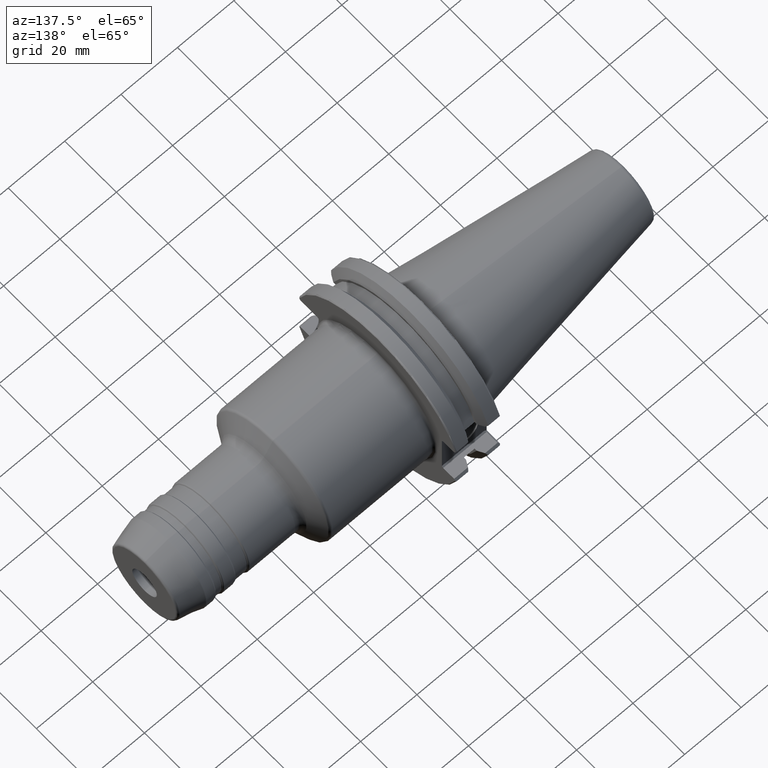
[diagram: clean part render]
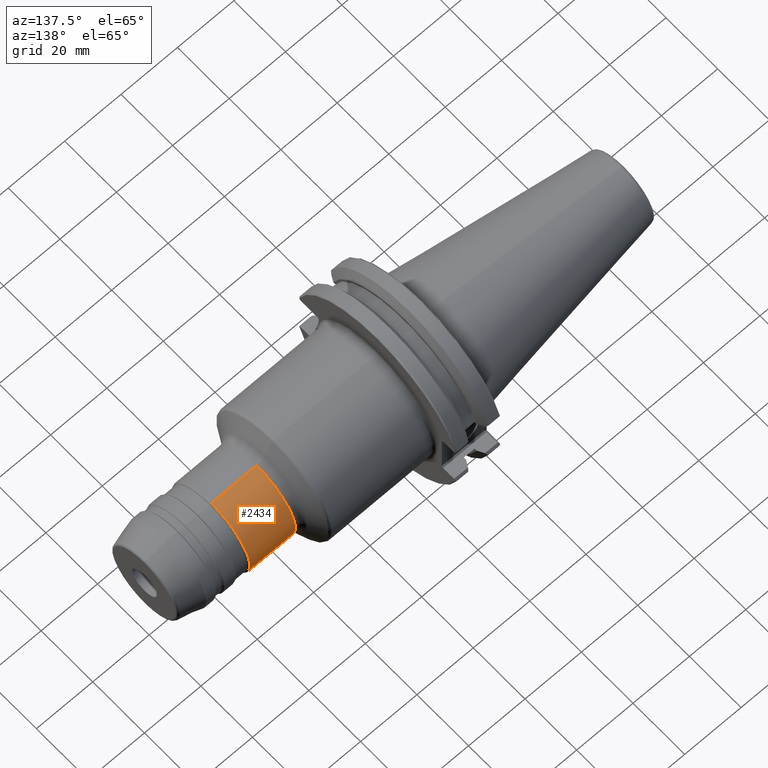
[diagram: same view with one face highlighted and labeled with its STEP entity id]
A machine part, auxiliary view. The second image highlights one B-rep face of the part: STEP entity #2434.
In plain terms, the highlighted cylindrical surface (partial cylindrical patch) has radius 15 mm, axis along (1, 0, 0).
Its self-contained STEP definition (entity closure, byte-faithful):
#293=CARTESIAN_POINT('',(6.185705080757E1,0.E0,0.E0));
#294=DIRECTION('',(1.E0,0.E0,0.E0));
#295=DIRECTION('',(0.E0,0.E0,-1.E0));
#296=AXIS2_PLACEMENT_3D('',#293,#294,#295);
#313=DIRECTION('',(-1.E0,0.E0,0.E0));
#314=VECTOR('',#313,1.613286389632E1);
#315=CARTESIAN_POINT('',(7.798991470389E1,0.E0,-1.5E1));
#316=LINE('',#315,#314);
#317=DIRECTION('',(-1.E0,0.E0,0.E0));
#318=VECTOR('',#317,1.613286389632E1);
#319=CARTESIAN_POINT('',(7.798991470389E1,0.E0,1.5E1));
#320=LINE('',#319,#318);
#326=CARTESIAN_POINT('',(7.798991470389E1,0.E0,0.E0));
#327=DIRECTION('',(1.E0,0.E0,0.E0));
#328=DIRECTION('',(0.E0,0.E0,-1.E0));
#329=AXIS2_PLACEMENT_3D('',#326,#327,#328);
#1836=CARTESIAN_POINT('',(7.798991470389E1,0.E0,-1.5E1));
#1837=VERTEX_POINT('',#1836);
#1838=CARTESIAN_POINT('',(6.185705080757E1,0.E0,-1.5E1));
#1839=VERTEX_POINT('',#1838);
#1902=CARTESIAN_POINT('',(7.798991470389E1,0.E0,1.5E1));
#1903=VERTEX_POINT('',#1902);
#1904=CARTESIAN_POINT('',(6.185705080757E1,0.E0,1.5E1));
#1905=VERTEX_POINT('',#1904);
#2422=CARTESIAN_POINT('',(1.49475E1,0.E0,0.E0));
#2423=DIRECTION('',(1.E0,0.E0,0.E0));
#2424=DIRECTION('',(0.E0,0.E0,1.E0));
#2425=AXIS2_PLACEMENT_3D('',#2422,#2423,#2424);
#2426=CYLINDRICAL_SURFACE('',#2425,1.5E1);
#2427=ORIENTED_EDGE('',*,*,#2412,.F.);
#2429=ORIENTED_EDGE('',*,*,#2428,.T.);
#2430=ORIENTED_EDGE('',*,*,#2415,.T.);
#2431=ORIENTED_EDGE('',*,*,#2386,.F.);
#2432=EDGE_LOOP('',(#2427,#2429,#2430,#2431));
#2433=FACE_OUTER_BOUND('',#2432,.F.);
#2434=ADVANCED_FACE('',(#2433),#2426,.T.);
#297=CIRCLE('',#296,1.5E1);
#330=CIRCLE('',#329,1.5E1);
#2386=EDGE_CURVE('',#1839,#1905,#297,.T.);
#2412=EDGE_CURVE('',#1837,#1839,#316,.T.);
#2415=EDGE_CURVE('',#1903,#1905,#320,.T.);
#2428=EDGE_CURVE('',#1837,#1903,#330,.T.);